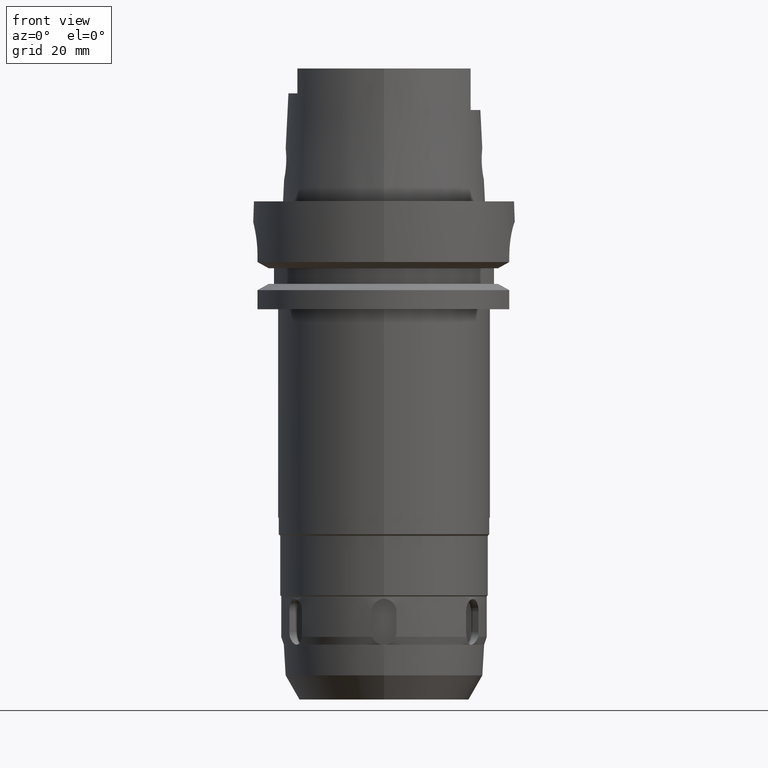
[diagram: clean part render]
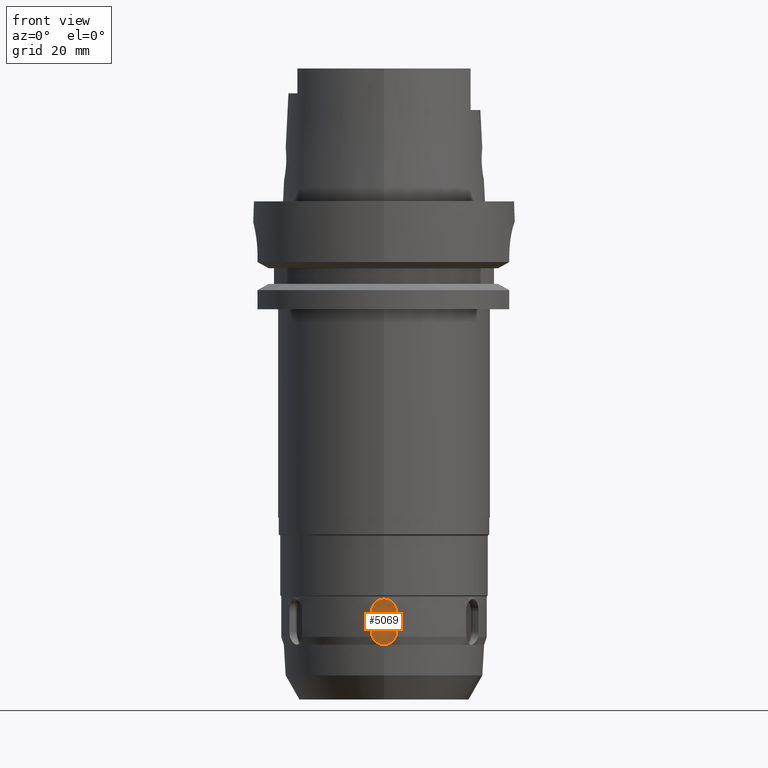
[diagram: same view with one face highlighted and labeled with its STEP entity id]
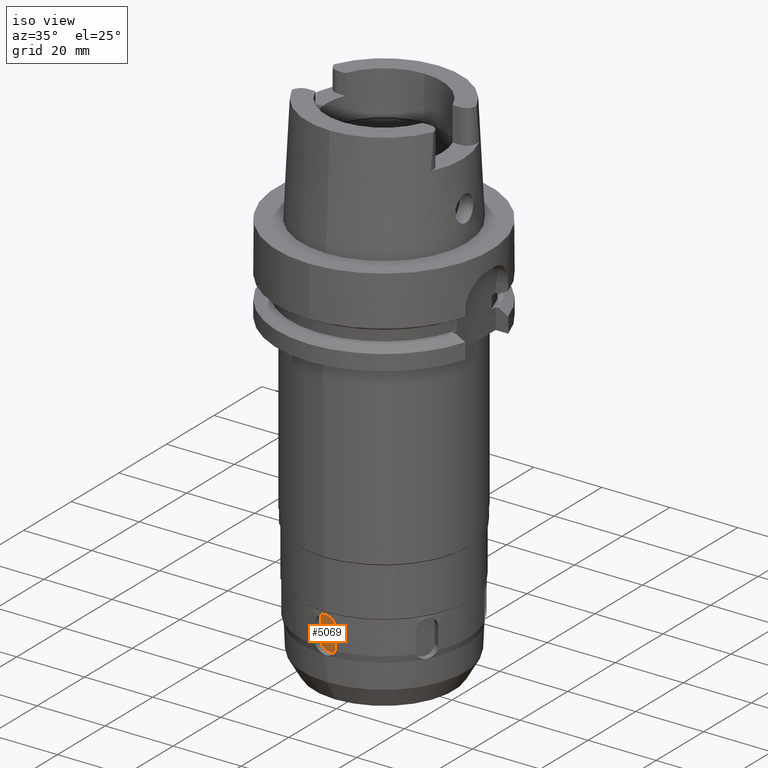
[diagram: same view with one face highlighted and labeled with its STEP entity id]
A machine part, front view. The second image highlights one B-rep face of the part: STEP entity #5069.
A second angle (iso view) of the same face is appended — the face is thin or edge-on in the first view.
In plain terms, the highlighted planar face has unit normal (0, -1, 0).
Its self-contained STEP definition (entity closure, byte-faithful):
#1709=DIRECTION('',(0.E0,0.E0,-1.E0));
#1710=VECTOR('',#1709,5.E0);
#1711=CARTESIAN_POINT('',(3.E0,-2.25E1,-9.88E1));
#1712=LINE('',#1711,#1710);
#1716=CARTESIAN_POINT('',(0.E0,-2.25E1,-1.038E2));
#1717=DIRECTION('',(0.E0,1.E0,0.E0));
#1718=DIRECTION('',(1.E0,0.E0,0.E0));
#1719=AXIS2_PLACEMENT_3D('',#1716,#1717,#1718);
#1724=CARTESIAN_POINT('',(0.E0,-2.25E1,-1.038E2));
#1725=DIRECTION('',(0.E0,1.E0,0.E0));
#1726=DIRECTION('',(0.E0,0.E0,-1.E0));
#1727=AXIS2_PLACEMENT_3D('',#1724,#1725,#1726);
#1732=DIRECTION('',(0.E0,0.E0,1.E0));
#1733=VECTOR('',#1732,5.E0);
#1734=CARTESIAN_POINT('',(-3.E0,-2.25E1,-1.038E2));
#1735=LINE('',#1734,#1733);
#1739=CARTESIAN_POINT('',(0.E0,-2.25E1,-9.88E1));
#1740=DIRECTION('',(0.E0,1.E0,0.E0));
#1741=DIRECTION('',(-1.E0,0.E0,0.E0));
#1742=AXIS2_PLACEMENT_3D('',#1739,#1740,#1741);
#1747=CARTESIAN_POINT('',(0.E0,-2.25E1,-9.88E1));
#1748=DIRECTION('',(0.E0,1.E0,0.E0));
#1749=DIRECTION('',(0.E0,0.E0,1.E0));
#1750=AXIS2_PLACEMENT_3D('',#1747,#1748,#1749);
#3582=CARTESIAN_POINT('',(-3.E0,-2.25E1,-1.038E2));
#3583=VERTEX_POINT('',#3582);
#3584=CARTESIAN_POINT('',(0.E0,-2.25E1,-1.068E2));
#3585=VERTEX_POINT('',#3584);
#3586=CARTESIAN_POINT('',(3.E0,-2.25E1,-1.038E2));
#3587=VERTEX_POINT('',#3586);
#3640=CARTESIAN_POINT('',(3.E0,-2.25E1,-9.88E1));
#3641=VERTEX_POINT('',#3640);
#3642=CARTESIAN_POINT('',(0.E0,-2.25E1,-9.58E1));
#3643=VERTEX_POINT('',#3642);
#3644=CARTESIAN_POINT('',(-3.E0,-2.25E1,-9.88E1));
#3645=VERTEX_POINT('',#3644);
#5053=CARTESIAN_POINT('',(0.E0,-2.25E1,0.E0));
#5054=DIRECTION('',(0.E0,-1.E0,0.E0));
#5055=DIRECTION('',(0.E0,0.E0,-1.E0));
#5056=AXIS2_PLACEMENT_3D('',#5053,#5054,#5055);
#5057=PLANE('',#5056);
#5058=ORIENTED_EDGE('',*,*,#5046,.T.);
#5059=ORIENTED_EDGE('',*,*,#4639,.T.);
#5060=ORIENTED_EDGE('',*,*,#4637,.T.);
#5062=ORIENTED_EDGE('',*,*,#5061,.T.);
#5064=ORIENTED_EDGE('',*,*,#5063,.T.);
#5066=ORIENTED_EDGE('',*,*,#5065,.T.);
#5067=EDGE_LOOP('',(#5058,#5059,#5060,#5062,#5064,#5066));
#5068=FACE_OUTER_BOUND('',#5067,.F.);
#1720=CIRCLE('',#1719,3.E0);
#1728=CIRCLE('',#1727,3.E0);
#1743=CIRCLE('',#1742,3.E0);
#1751=CIRCLE('',#1750,3.E0);
#4637=EDGE_CURVE('',#3585,#3583,#1728,.T.);
#4639=EDGE_CURVE('',#3587,#3585,#1720,.T.);
#5046=EDGE_CURVE('',#3641,#3587,#1712,.T.);
#5061=EDGE_CURVE('',#3583,#3645,#1735,.T.);
#5063=EDGE_CURVE('',#3645,#3643,#1743,.T.);
#5065=EDGE_CURVE('',#3643,#3641,#1751,.T.);
#5069=ADVANCED_FACE('',(#5068),#5057,.T.);